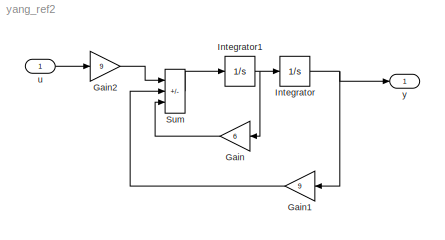
MODEL yang_ref2
KIND model
CONFIG AbsTol = auto
CONFIG FixedStep = auto
CONFIG MaxStep = auto
CONFIG RelTol = 1e-3
CONFIG Solver = ode45
CONFIG SolverMode = Auto
CONFIG StartTime = 0.0
CONFIG StopTime = 10.0
BLOCK [Gain] Gain
  Gain = 6
  SaturateOnIntegerOverflow = on
BLOCK [Gain] Gain1
  Gain = 9
  SaturateOnIntegerOverflow = on
BLOCK [Gain] Gain2
  Gain = 9
  SaturateOnIntegerOverflow = on
BLOCK [Integrator] Integrator
  AbsoluteTolerance = auto
  ExternalReset = none
  InitialCondition = 0
  InitialConditionSource = internal
  LimitOutput = off
  LowerSaturationLimit = -inf
  Ports = [1, 1, 0, 0, 0]
  ShowSaturationPort = off
  ShowStatePort = off
  UpperSaturationLimit = inf
BLOCK [Integrator] Integrator1
  AbsoluteTolerance = auto
  ExternalReset = none
  InitialCondition = 0
  InitialConditionSource = internal
  LimitOutput = off
  LowerSaturationLimit = -inf
  Ports = [1, 1, 0, 0, 0]
  ShowSaturationPort = off
  ShowStatePort = off
  UpperSaturationLimit = inf
BLOCK [Sum] Sum
  IconShape = rectangular
  Inputs = +--
  Ports = [3, 1, 0, 0, 0]
  SaturateOnIntegerOverflow = on
BLOCK [Inport] u
  DataType = auto
  Interpolate = on
  Port = 1
  PortWidth = -1
  SampleTime = -1
  SignalType = auto
BLOCK [Outport] y
  InitialOutput = []
  OutputWhenDisabled = held
  Port = 1
LINE Gain1:1 -> Sum:2
LINE Gain2:1 -> Sum:1
LINE Gain:1 -> Sum:3
NET Integrator1:1 -> Gain:1, Integrator:1
NET Integrator:1 -> Gain1:1, y:1
LINE Sum:1 -> Integrator1:1
LINE u:1 -> Gain2:1
note: NET lines group one-source signal fan-out (src -> all destinations, sorted); 1:1 wires keep LINE
